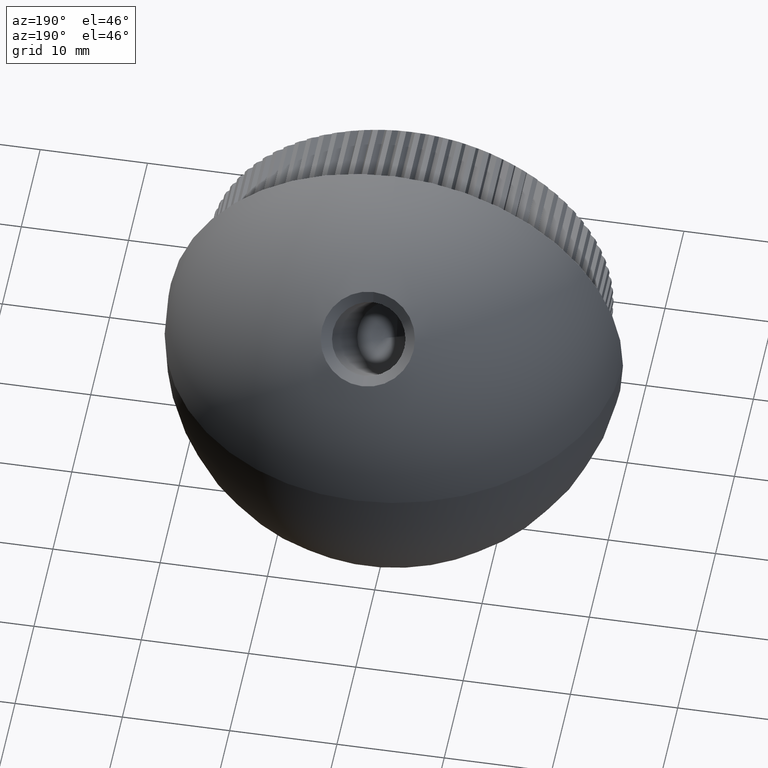
[diagram: clean part render]
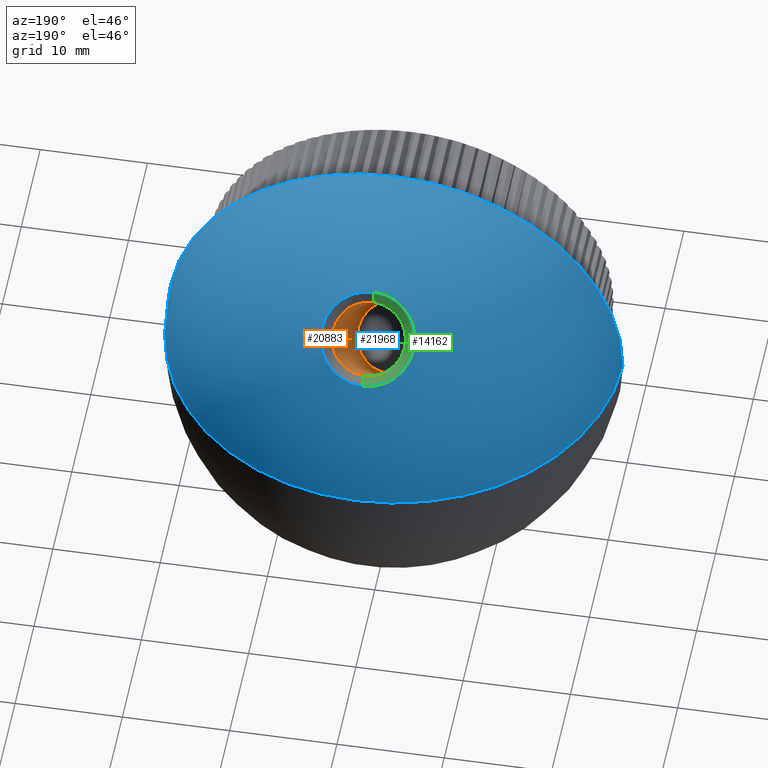
[diagram: same view with three faces highlighted in distinct colors, each labeled with its STEP entity id]
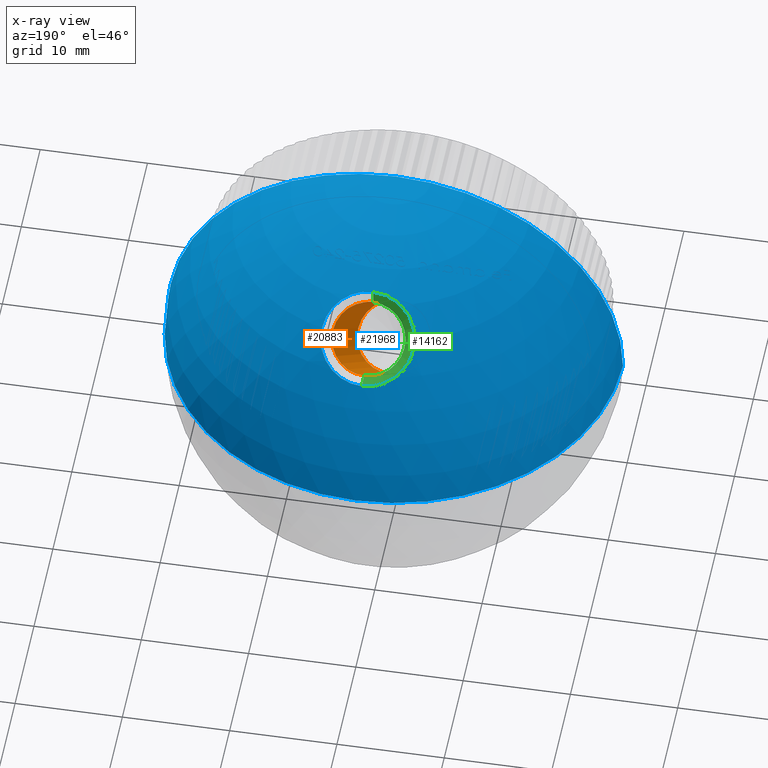
[diagram: x-ray of the same camera — body ghosted, the three highlighted faces saturated]
A machine part, auxiliary view with three faces highlighted in distinct colors.
The next image is the same camera in x-ray (body ghosted, the three faces saturated) — at least one of them is partly hidden behind the body in this view.
Their STEP definitions:

[orange] entity #20883 — the highlighted cylindrical surface (partial cylindrical patch) has radius 3.4 mm, axis along (-0, 0.7071, 0.7071).
#90 = CARTESIAN_POINT ( 'NONE',  ( -1.096426340312313600E-015, 7.444365081389605600, 3.252691193458117100 ) ) ;
#1255 = DIRECTION ( 'NONE',  ( 0.0000000000000000000, -0.7071067811865450200, 0.7071067811865500200 ) ) ;
#1584 = CIRCLE ( 'NONE', #2889, 3.399999999999995000 ) ;
#2300 = DIRECTION ( 'NONE',  ( -0.0000000000000000000, 0.7071067811865487900, 0.7071067811865462400 ) ) ;
#2651 = DIRECTION ( 'NONE',  ( -0.0000000000000000000, 0.7071067811865489100, 0.7071067811865462400 ) ) ;
#2889 = AXIS2_PLACEMENT_3D ( 'NONE', #21480, #9251, #18030 ) ;
#4705 = DIRECTION ( 'NONE',  ( 0.0000000000000000000, 0.7071067811865500200, 0.7071067811865450200 ) ) ;
#5804 = EDGE_CURVE ( 'NONE', #11880, #21427, #1584, .T. ) ;
#6061 = CARTESIAN_POINT ( 'NONE',  ( -6.800464286022144300E-016, 26.39482681718908800, 12.58650070512051800 ) ) ;
#8127 = LINE ( 'NONE', #6061, #14118 ) ;
#9025 = DIRECTION ( 'NONE',  ( -0.0000000000000000000, 0.7071067811865489100, 0.7071067811865462400 ) ) ;
#9251 = DIRECTION ( 'NONE',  ( -0.0000000000000000000, 0.7071067811865487900, 0.7071067811865462400 ) ) ;
#10425 = CARTESIAN_POINT ( 'NONE',  ( -6.800464286022142300E-016, 12.25269119345811200, -1.555634918610407000 ) ) ;
#10442 = FACE_OUTER_BOUND ( 'NONE', #15884, .T. ) ;
#11063 = VERTEX_POINT ( 'NONE', #21753 ) ;
#11123 = CARTESIAN_POINT ( 'NONE',  ( -1.096426340312313600E-015, 20.77620721018298500, 16.58453332225144200 ) ) ;
#11496 = ORIENTED_EDGE ( 'NONE', *, *, #21393, .F. ) ;
#11880 = VERTEX_POINT ( 'NONE', #90 ) ;
#12184 = EDGE_CURVE ( 'NONE', #16774, #11063, #15535, .T. ) ;
#12206 = ORIENTED_EDGE ( 'NONE', *, *, #5804, .F. ) ;
#12429 = CYLINDRICAL_SURFACE ( 'NONE', #22859, 3.399999999999992400 ) ;
#12698 = VECTOR ( 'NONE', #9025, 999.9999999999998900 ) ;
#13087 = EDGE_CURVE ( 'NONE', #11880, #16774, #13236, .T. ) ;
#13236 = LINE ( 'NONE', #14359, #12698 ) ;
#13284 = DIRECTION ( 'NONE',  ( 0.0000000000000000000, -0.7071067811865460200, 0.7071067811865490200 ) ) ;
#13809 = CARTESIAN_POINT ( 'NONE',  ( -1.096426340312313600E-015, 23.18037026621723100, 14.18037026621717800 ) ) ;
#14118 = VECTOR ( 'NONE', #2651, 999.9999999999998900 ) ;
#14359 = CARTESIAN_POINT ( 'NONE',  ( -1.096426340312313600E-015, 21.58650070512058500, 17.39482681718904200 ) ) ;
#15535 = CIRCLE ( 'NONE', #22009, 3.399999999999992400 ) ;
#15884 = EDGE_LOOP ( 'NONE', ( #11496, #12206, #19708, #19619 ) ) ;
#16774 = VERTEX_POINT ( 'NONE', #11123 ) ;
#18030 = DIRECTION ( 'NONE',  ( 0.0000000000000000000, -0.7071067811865462400, 0.7071067811865486800 ) ) ;
#19619 = ORIENTED_EDGE ( 'NONE', *, *, #12184, .T. ) ;
#19708 = ORIENTED_EDGE ( 'NONE', *, *, #13087, .T. ) ;
#20450 = CARTESIAN_POINT ( 'NONE',  ( -1.096426340312313600E-015, 23.99066376115483500, 14.99066376115478000 ) ) ;
#20883 = ADVANCED_FACE ( 'NONE', ( #10442 ), #12429, .F. ) ;
#21393 = EDGE_CURVE ( 'NONE', #21427, #11063, #8127, .T. ) ;
#21427 = VERTEX_POINT ( 'NONE', #10425 ) ;
#21480 = CARTESIAN_POINT ( 'NONE',  ( -1.096426340312313600E-015, 9.848528137423858900, 0.8485281374238546900 ) ) ;
#21753 = CARTESIAN_POINT ( 'NONE',  ( -6.800464286022144300E-016, 25.58453332225147700, 11.77620721018291200 ) ) ;
#22009 = AXIS2_PLACEMENT_3D ( 'NONE', #13809, #4705, #1255 ) ;
#22859 = AXIS2_PLACEMENT_3D ( 'NONE', #20450, #2300, #13284 ) ;

[blue] entity #21968 — the highlighted spherical surface has radius 21.2 mm.
#188 = VERTEX_POINT ( 'NONE', #15795 ) ;
#899 = DIRECTION ( 'NONE',  ( -1.000000000000000000, 0.0000000000000000000, 0.0000000000000000000 ) ) ;
#1226 = VERTEX_POINT ( 'NONE', #11817 ) ;
#1837 = CARTESIAN_POINT ( 'NONE',  ( -1.149114390993522900E-027, 8.999999999999996400, 0.0000000000000000000 ) ) ;
#2469 = EDGE_CURVE ( 'NONE', #188, #23157, #9374, .T. ) ;
#3328 = CARTESIAN_POINT ( 'NONE',  ( -1.149114390993522900E-027, 23.67003839562131200, 14.67003839562121000 ) ) ;
#3637 = DIRECTION ( 'NONE',  ( 1.000000000000000000, 0.0000000000000000000, 0.0000000000000000000 ) ) ;
#4519 = CARTESIAN_POINT ( 'NONE',  ( -1.149114390993522900E-027, 8.999999999999996400, 0.0000000000000000000 ) ) ;
#4681 = EDGE_CURVE ( 'NONE', #1226, #20520, #8458, .T. ) ;
#5011 = CARTESIAN_POINT ( 'NONE',  ( -5.623350420124045700E-016, 26.75386288333099600, 11.58621390791150900 ) ) ;
#5300 = EDGE_LOOP ( 'NONE', ( #5938, #16188 ) ) ;
#5938 = ORIENTED_EDGE ( 'NONE', *, *, #4681, .T. ) ;
#6723 = EDGE_CURVE ( 'NONE', #188, #13650, #20190, .T. ) ;
#6795 = DIRECTION ( 'NONE',  ( 0.0000000000000000000, 0.7071067811865449100, -0.7071067811865500200 ) ) ;
#7916 = DIRECTION ( 'NONE',  ( 0.0000000000000000000, 0.0000000000000000000, -1.000000000000000000 ) ) ;
#8458 = CIRCLE ( 'NONE', #13183, 4.361186414497343100 ) ;
#9050 = EDGE_CURVE ( 'NONE', #20520, #1226, #20688, .T. ) ;
#9374 = CIRCLE ( 'NONE', #22347, 21.20000000000000300 ) ;
#9611 = CARTESIAN_POINT ( 'NONE',  ( 21.20000000000000300, 8.999999999999998200, 0.0000000000000000000 ) ) ;
#9868 = DIRECTION ( 'NONE',  ( -0.0000000000000000000, -0.7071067811865500200, -0.7071067811865450200 ) ) ;
#10240 = ORIENTED_EDGE ( 'NONE', *, *, #22169, .F. ) ;
#10443 = DIRECTION ( 'NONE',  ( -0.0000000000000000000, -0.7071067811865500200, -0.7071067811865450200 ) ) ;
#10532 = AXIS2_PLACEMENT_3D ( 'NONE', #1837, #14502, #3637 ) ;
#11765 = DIRECTION ( 'NONE',  ( 1.000000000000000000, 0.0000000000000000000, 0.0000000000000000000 ) ) ;
#11817 = CARTESIAN_POINT ( 'NONE',  ( -1.096426340312313600E-015, 20.58621390791158500, 17.75386288333096000 ) ) ;
#11859 = AXIS2_PLACEMENT_3D ( 'NONE', #3328, #10443, #6795 ) ;
#12103 = FACE_BOUND ( 'NONE', #5300, .T. ) ;
#12685 = SPHERICAL_SURFACE ( 'NONE', #10532, 21.20000000000000300 ) ;
#12958 = AXIS2_PLACEMENT_3D ( 'NONE', #22396, #22542, #11765 ) ;
#13183 = AXIS2_PLACEMENT_3D ( 'NONE', #22329, #9868, #22406 ) ;
#13352 = AXIS2_PLACEMENT_3D ( 'NONE', #4519, #7916, #899 ) ;
#13650 = VERTEX_POINT ( 'NONE', #9611 ) ;
#13909 = ORIENTED_EDGE ( 'NONE', *, *, #6723, .F. ) ;
#14096 = CIRCLE ( 'NONE', #12958, 21.20000000000000300 ) ;
#14502 = DIRECTION ( 'NONE',  ( 0.0000000000000000000, -0.0000000000000000000, 1.000000000000000000 ) ) ;
#14824 = CARTESIAN_POINT ( 'NONE',  ( -1.149114390993522900E-027, 8.999999999999996400, 0.0000000000000000000 ) ) ;
#15795 = CARTESIAN_POINT ( 'NONE',  ( 1.298125607094238800E-015, 30.19999999999999900, 0.0000000000000000000 ) ) ;
#16188 = ORIENTED_EDGE ( 'NONE', *, *, #9050, .T. ) ;
#16754 = CARTESIAN_POINT ( 'NONE',  ( -21.20000000000000300, 8.999999999999998200, 2.596251214192388800E-015 ) ) ;
#17369 = EDGE_LOOP ( 'NONE', ( #13909, #18505, #10240 ) ) ;
#18505 = ORIENTED_EDGE ( 'NONE', *, *, #2469, .T. ) ;
#20190 = CIRCLE ( 'NONE', #13352, 21.20000000000000300 ) ;
#20520 = VERTEX_POINT ( 'NONE', #5011 ) ;
#20688 = CIRCLE ( 'NONE', #11859, 4.361186414497343100 ) ;
#21968 = ADVANCED_FACE ( 'NONE', ( #12103, #22232 ), #12685, .T. ) ;
#22169 = EDGE_CURVE ( 'NONE', #13650, #23157, #14096, .T. ) ;
#22179 = DIRECTION ( 'NONE',  ( 1.000000000000000000, 0.0000000000000000000, -1.224646799147353200E-016 ) ) ;
#22232 = FACE_OUTER_BOUND ( 'NONE', #17369, .T. ) ;
#22260 = DIRECTION ( 'NONE',  ( 1.224646799147353200E-016, 4.659798876769463300E-045, 1.000000000000000000 ) ) ;
#22329 = CARTESIAN_POINT ( 'NONE',  ( -1.149114390993522900E-027, 23.67003839562131200, 14.67003839562121000 ) ) ;
#22347 = AXIS2_PLACEMENT_3D ( 'NONE', #14824, #22260, #22179 ) ;
#22396 = CARTESIAN_POINT ( 'NONE',  ( -3.424513085742286300E-028, 8.999999999999998200, 0.0000000000000000000 ) ) ;
#22406 = DIRECTION ( 'NONE',  ( 0.0000000000000000000, 0.7071067811865449100, -0.7071067811865500200 ) ) ;
#22542 = DIRECTION ( 'NONE',  ( 3.805014539713652200E-029, -1.000000000000000000, -0.0000000000000000000 ) ) ;
#23157 = VERTEX_POINT ( 'NONE', #16754 ) ;

[green] entity #14162 — the highlighted conical surface has half-angle 54.229 deg.
#220 = FACE_OUTER_BOUND ( 'NONE', #13160, .T. ) ;
#1163 = CARTESIAN_POINT ( 'NONE',  ( -6.800464286022144300E-016, 25.58453332225147700, 11.77620721018291200 ) ) ;
#1226 = VERTEX_POINT ( 'NONE', #11817 ) ;
#1454 = EDGE_CURVE ( 'NONE', #11063, #16774, #21283, .T. ) ;
#1913 = CONICAL_SURFACE ( 'NONE', #6921, 3.399999999999992400, 0.9464711116459212400 ) ;
#2020 = DIRECTION ( 'NONE',  ( 0.0000000000000000000, 0.7071067811865500200, 0.7071067811865450200 ) ) ;
#2245 = ORIENTED_EDGE ( 'NONE', *, *, #10522, .F. ) ;
#3898 = LINE ( 'NONE', #1163, #22518 ) ;
#4681 = EDGE_CURVE ( 'NONE', #1226, #20520, #8458, .T. ) ;
#5011 = CARTESIAN_POINT ( 'NONE',  ( -5.623350420124045700E-016, 26.75386288333099600, 11.58621390791150900 ) ) ;
#5622 = DIRECTION ( 'NONE',  ( 0.0000000000000000000, -0.7071067811865450200, 0.7071067811865500200 ) ) ;
#6473 = ORIENTED_EDGE ( 'NONE', *, *, #20011, .T. ) ;
#6921 = AXIS2_PLACEMENT_3D ( 'NONE', #11025, #2020, #9281 ) ;
#8458 = CIRCLE ( 'NONE', #13183, 4.361186414497343100 ) ;
#9281 = DIRECTION ( 'NONE',  ( 0.0000000000000000000, -0.7071067811865450200, 0.7071067811865500200 ) ) ;
#9868 = DIRECTION ( 'NONE',  ( -0.0000000000000000000, -0.7071067811865500200, -0.7071067811865450200 ) ) ;
#10241 = DIRECTION ( 'NONE',  ( 9.936266710375372700E-017, 0.9870557749608608300, -0.1603773584905748800 ) ) ;
#10522 = EDGE_CURVE ( 'NONE', #16774, #1226, #17272, .T. ) ;
#11025 = CARTESIAN_POINT ( 'NONE',  ( -1.096426340312313600E-015, 23.18037026621723100, 14.18037026621717800 ) ) ;
#11063 = VERTEX_POINT ( 'NONE', #21753 ) ;
#11123 = CARTESIAN_POINT ( 'NONE',  ( -1.096426340312313600E-015, 20.77620721018298500, 16.58453332225144200 ) ) ;
#11150 = CARTESIAN_POINT ( 'NONE',  ( -1.096426340312313600E-015, 23.18037026621723100, 14.18037026621717800 ) ) ;
#11176 = AXIS2_PLACEMENT_3D ( 'NONE', #11150, #12973, #5622 ) ;
#11817 = CARTESIAN_POINT ( 'NONE',  ( -1.096426340312313600E-015, 20.58621390791158500, 17.75386288333096000 ) ) ;
#12973 = DIRECTION ( 'NONE',  ( 0.0000000000000000000, 0.7071067811865500200, 0.7071067811865450200 ) ) ;
#13160 = EDGE_LOOP ( 'NONE', ( #21390, #6473, #16237, #2245 ) ) ;
#13183 = AXIS2_PLACEMENT_3D ( 'NONE', #22329, #9868, #22406 ) ;
#13301 = VECTOR ( 'NONE', #18107, 1000.000000000000100 ) ;
#14162 = ADVANCED_FACE ( 'NONE', ( #220 ), #1913, .F. ) ;
#14575 = CARTESIAN_POINT ( 'NONE',  ( -1.096426340312313600E-015, 20.77620721018298500, 16.58453332225144200 ) ) ;
#16237 = ORIENTED_EDGE ( 'NONE', *, *, #4681, .F. ) ;
#16774 = VERTEX_POINT ( 'NONE', #11123 ) ;
#17272 = LINE ( 'NONE', #14575, #13301 ) ;
#18107 = DIRECTION ( 'NONE',  ( 0.0000000000000000000, -0.1603773584905680000, 0.9870557749608619400 ) ) ;
#20011 = EDGE_CURVE ( 'NONE', #11063, #20520, #3898, .T. ) ;
#20520 = VERTEX_POINT ( 'NONE', #5011 ) ;
#21283 = CIRCLE ( 'NONE', #11176, 3.399999999999992400 ) ;
#21390 = ORIENTED_EDGE ( 'NONE', *, *, #1454, .F. ) ;
#21753 = CARTESIAN_POINT ( 'NONE',  ( -6.800464286022144300E-016, 25.58453332225147700, 11.77620721018291200 ) ) ;
#22329 = CARTESIAN_POINT ( 'NONE',  ( -1.149114390993522900E-027, 23.67003839562131200, 14.67003839562121000 ) ) ;
#22406 = DIRECTION ( 'NONE',  ( 0.0000000000000000000, 0.7071067811865449100, -0.7071067811865500200 ) ) ;
#22518 = VECTOR ( 'NONE', #10241, 1000.000000000000100 ) ;